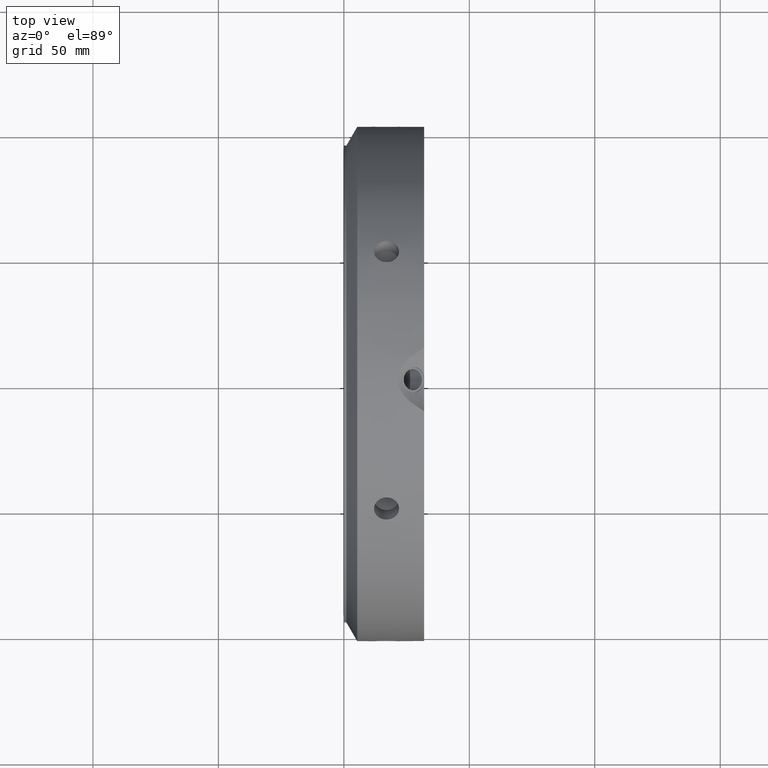
[diagram: clean part render]
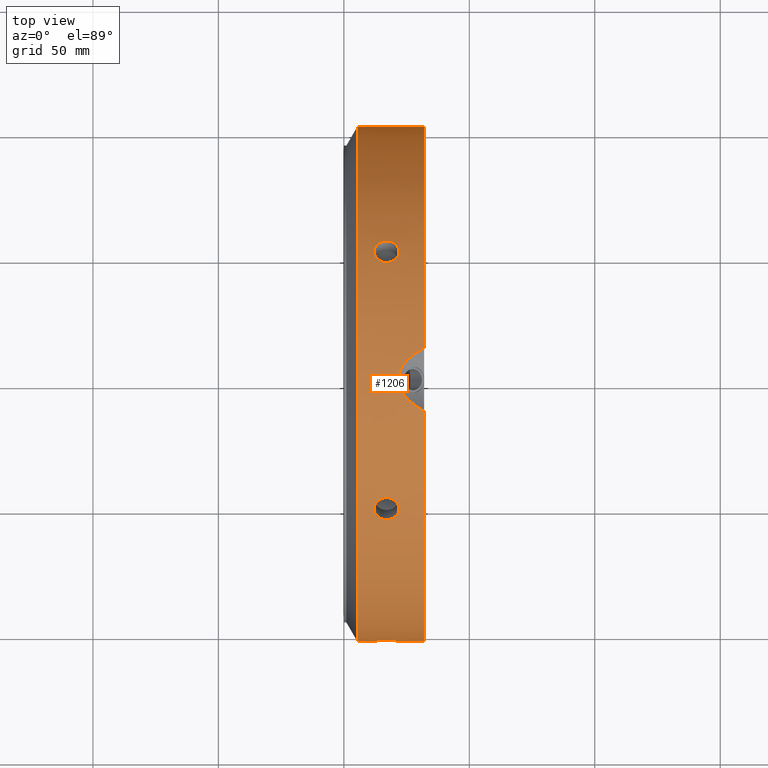
[diagram: same view with one face highlighted and labeled with its STEP entity id]
A machine part, top view. The second image highlights one B-rep face of the part: STEP entity #1206.
In plain terms, the highlighted cylindrical surface (bore or boss wall) has radius 102.5 mm, axis along (1, 0, 0).
Its self-contained STEP definition (entity closure, byte-faithful):
#90=CARTESIAN_POINT('',(11.999999999999977,51.250000000000085,88.767603887904926));
#91=VERTEX_POINT('',#90);
#92=CARTESIAN_POINT('',(21.999999999999975,51.250000000000099,88.767603887904926));
#93=VERTEX_POINT('',#92);
#94=CARTESIAN_POINT('',(11.999999999999977,51.250000000000078,88.767603887904926));
#95=CARTESIAN_POINT('',(11.999999999999977,51.793792921607164,88.453644898231673));
#96=CARTESIAN_POINT('',(12.125509943807328,52.370592083182842,88.113282718285021));
#97=CARTESIAN_POINT('',(12.635809299555829,53.425919702551667,87.477429148746651));
#98=CARTESIAN_POINT('',(13.020593196876021,53.904619909852869,87.182218429070844));
#99=CARTESIAN_POINT('',(13.908339076196159,54.658110761937067,86.711811109278756));
#100=CARTESIAN_POINT('',(14.470510937476194,54.983184160409024,86.505287083411844));
#101=CARTESIAN_POINT('',(15.70237812787928,55.413605861205809,86.230200738064752));
#102=CARTESIAN_POINT('',(16.372081900497648,55.519115092530441,86.161928131526622));
#103=CARTESIAN_POINT('',(17.62791809950231,55.519115092530441,86.161928131526622));
#104=CARTESIAN_POINT('',(18.297621872120676,55.413605861205809,86.230200738064752));
#105=CARTESIAN_POINT('',(19.529489062523766,54.983184160409024,86.505287083411844));
#106=CARTESIAN_POINT('',(20.091660923803794,54.658110761937067,86.711811109278756));
#107=CARTESIAN_POINT('',(20.979406803123936,53.904619909852869,87.182218429070844));
#108=CARTESIAN_POINT('',(21.364190700444126,53.425919702551667,87.477429148746651));
#109=CARTESIAN_POINT('',(21.874490056192627,52.370592083182842,88.113282718285021));
#110=CARTESIAN_POINT('',(21.999999999999975,51.793792921607142,88.453644898231673));
#111=CARTESIAN_POINT('',(21.999999999999975,51.250000000000064,88.767603887904926));
#112=B_SPLINE_CURVE_WITH_KNOTS('',3,(#94,#95,#96,#97,#98,#99,#100,#101,#102,#103,#104,#105,#106,#107,#108,#109,#110,#111),.UNSPECIFIED.,.F.,.U.,(4,2,2,2,2,2,2,2,4),(0.753501647309308,0.941877041113261,1.130252434917214,1.318627864767914,1.507003294618613,1.695378724469313,1.883754154320012,2.072129548123965,2.260504941927918),.UNSPECIFIED.);
#113=EDGE_CURVE('',#91,#93,#112,.T.);
#115=CARTESIAN_POINT('',(21.999999999999975,51.250000000000071,88.767603887904897));
#116=CARTESIAN_POINT('',(21.999999999999975,50.706207078393,89.081562877578165));
#117=CARTESIAN_POINT('',(21.874490056192624,50.12304520328393,89.410904514410973));
#118=CARTESIAN_POINT('',(21.364190700444116,49.044716049292248,90.006918257330554));
#119=CARTESIAN_POINT('',(20.979406803123936,48.549705962932919,90.273879437812354));
#120=CARTESIAN_POINT('',(20.091660923803794,47.765575847824721,90.691217997340416));
#121=CARTESIAN_POINT('',(19.529489062523751,47.424184095696134,90.8694778055782));
#122=CARTESIAN_POINT('',(18.297621872120665,46.970741481992981,91.104690760134787));
#123=CARTESIAN_POINT('',(17.627918099502303,46.858861054686059,91.161928131526622));
#124=CARTESIAN_POINT('',(16.999999999999979,46.858861054686059,91.161928131526622));
#125=CARTESIAN_POINT('',(16.372081900497648,46.858861054686059,91.161928131526622));
#126=CARTESIAN_POINT('',(15.702378127879291,46.970741481992988,91.104690760134787));
#127=CARTESIAN_POINT('',(14.470510937476204,47.424184095696155,90.8694778055782));
#128=CARTESIAN_POINT('',(13.90833907619616,47.765575847824721,90.691217997340416));
#129=CARTESIAN_POINT('',(13.020593196876016,48.549705962932919,90.273879437812354));
#130=CARTESIAN_POINT('',(12.635809299555834,49.044716049292248,90.006918257330554));
#131=CARTESIAN_POINT('',(12.125509943807327,50.12304520328393,89.410904514410973));
#132=CARTESIAN_POINT('',(11.999999999999979,50.706207078393007,89.081562877578165));
#133=CARTESIAN_POINT('',(11.999999999999979,51.250000000000071,88.767603887904897));
#134=B_SPLINE_CURVE_WITH_KNOTS('',3,(#115,#116,#117,#118,#119,#120,#121,#122,#123,#124,#125,#126,#127,#128,#129,#130,#131,#132,#133),.UNSPECIFIED.,.F.,.U.,(4,2,2,2,3,2,2,2,4),(2.260504941927918,2.448880335731873,2.637255729535828,2.825631159386528,3.014006589237226,3.202382019087926,3.390757448938624,3.579132842742579,3.767508236546534),.UNSPECIFIED.);
#135=EDGE_CURVE('',#93,#91,#134,.T.);
#202=CARTESIAN_POINT('',(11.999999999999977,102.5,-6.827872E-014));
#203=VERTEX_POINT('',#202);
#204=CARTESIAN_POINT('',(21.999999999999975,102.5,-6.217249E-014));
#205=VERTEX_POINT('',#204);
#206=CARTESIAN_POINT('',(11.999999999999977,102.5,-7.299716E-014));
#207=CARTESIAN_POINT('',(11.999999999999977,102.5,-0.627917979346587));
#208=CARTESIAN_POINT('',(12.125509943807327,102.49363728646659,-1.297621796126012));
#209=CARTESIAN_POINT('',(12.635809299555829,102.47063575184377,-2.529489108583968));
#210=CARTESIAN_POINT('',(13.020593196876018,102.45432587278565,-3.09166100874159));
#211=CARTESIAN_POINT('',(13.90833907619616,102.42368660976166,-3.979406888061733));
#212=CARTESIAN_POINT('',(14.470510937476195,102.407368256105,-4.364190722166458));
#213=CARTESIAN_POINT('',(15.702378127879278,102.38434734319864,-4.874490022070102));
#214=CARTESIAN_POINT('',(16.372081900497648,102.37797614721636,-5.000000000000071));
#215=CARTESIAN_POINT('',(17.627918099502303,102.37797614721636,-5.000000000000071));
#216=CARTESIAN_POINT('',(18.297621872120665,102.38434734319864,-4.874490022070104));
#217=CARTESIAN_POINT('',(19.529489062523751,102.407368256105,-4.364190722166462));
#218=CARTESIAN_POINT('',(20.09166092380379,102.42368660976166,-3.979406888061735));
#219=CARTESIAN_POINT('',(20.979406803123936,102.45432587278565,-3.091661008741592));
#220=CARTESIAN_POINT('',(21.364190700444119,102.47063575184377,-2.529489108583968));
#221=CARTESIAN_POINT('',(21.874490056192624,102.49363728646659,-1.297621796126014));
#222=CARTESIAN_POINT('',(21.999999999999979,102.5,-0.627917979346588));
#223=CARTESIAN_POINT('',(21.999999999999979,102.5,-7.452372E-014));
#224=B_SPLINE_CURVE_WITH_KNOTS('',3,(#206,#207,#208,#209,#210,#211,#212,#213,#214,#215,#216,#217,#218,#219,#220,#221,#222,#223),.UNSPECIFIED.,.F.,.U.,(4,2,2,2,2,2,2,2,4),(0.753501647309307,0.941877041113261,1.130252434917215,1.318627864767914,1.507003294618613,1.695378724469312,1.883754154320012,2.072129548123966,2.26050494192792),.UNSPECIFIED.);
#225=EDGE_CURVE('',#203,#205,#224,.T.);
#227=CARTESIAN_POINT('',(21.999999999999975,102.5,-7.535639E-014));
#228=CARTESIAN_POINT('',(21.999999999999975,102.5,0.627917979346438));
#229=CARTESIAN_POINT('',(21.874490056192624,102.49363728646659,1.297621796125865));
#230=CARTESIAN_POINT('',(21.364190700444119,102.47063575184377,2.52948910858382));
#231=CARTESIAN_POINT('',(20.979406803123936,102.45432587278565,3.091661008741443));
#232=CARTESIAN_POINT('',(20.091660923803794,102.42368660976166,3.979406888061586));
#233=CARTESIAN_POINT('',(19.529489062523758,102.407368256105,4.364190722166311));
#234=CARTESIAN_POINT('',(18.297621872120672,102.38434734319864,4.874490022069955));
#235=CARTESIAN_POINT('',(17.62791809950231,102.37797614721636,4.999999999999926));
#236=CARTESIAN_POINT('',(16.999999999999979,102.37797614721636,4.999999999999926));
#237=CARTESIAN_POINT('',(16.372081900497648,102.37797614721636,4.999999999999926));
#238=CARTESIAN_POINT('',(15.702378127879284,102.38434734319864,4.874490022069955));
#239=CARTESIAN_POINT('',(14.470510937476197,102.407368256105,4.364190722166311));
#240=CARTESIAN_POINT('',(13.90833907619616,102.42368660976166,3.979406888061587));
#241=CARTESIAN_POINT('',(13.020593196876021,102.45432587278565,3.091661008741444));
#242=CARTESIAN_POINT('',(12.635809299555831,102.47063575184379,2.52948910858382));
#243=CARTESIAN_POINT('',(12.125509943807328,102.49363728646662,1.297621796125863));
#244=CARTESIAN_POINT('',(11.999999999999977,102.49999999999999,0.627917979346441));
#245=CARTESIAN_POINT('',(11.999999999999977,102.49999999999999,-7.230327E-014));
#246=B_SPLINE_CURVE_WITH_KNOTS('',3,(#227,#228,#229,#230,#231,#232,#233,#234,#235,#236,#237,#238,#239,#240,#241,#242,#243,#244,#245),.UNSPECIFIED.,.F.,.U.,(4,2,2,2,3,2,2,2,4),(2.26050494192792,2.448880335731874,2.637255729535828,2.825631159386527,3.014006589237226,3.202382019087926,3.390757448938625,3.579132842742579,3.767508236546533),.UNSPECIFIED.);
#247=EDGE_CURVE('',#205,#203,#246,.T.);
#314=CARTESIAN_POINT('',(11.999999999999977,51.249999999999986,-88.767603887905011));
#315=VERTEX_POINT('',#314);
#316=CARTESIAN_POINT('',(21.999999999999975,51.25,-88.767603887904997));
#317=VERTEX_POINT('',#316);
#318=CARTESIAN_POINT('',(11.999999999999977,51.249999999999972,-88.767603887904983));
#319=CARTESIAN_POINT('',(11.999999999999977,50.7062070783929,-89.081562877578222));
#320=CARTESIAN_POINT('',(12.125509943807325,50.123045203283816,-89.410904514411015));
#321=CARTESIAN_POINT('',(12.635809299555827,49.044716049292141,-90.006918257330597));
#322=CARTESIAN_POINT('',(13.020593196876018,48.549705962932812,-90.273879437812425));
#323=CARTESIAN_POINT('',(13.90833907619616,47.765575847824607,-90.691217997340473));
#324=CARTESIAN_POINT('',(14.470510937476199,47.424184095696027,-90.869477805578242));
#325=CARTESIAN_POINT('',(15.70237812787928,46.97074148199286,-91.104690760134844));
#326=CARTESIAN_POINT('',(16.372081900497648,46.858861054685946,-91.161928131526679));
#327=CARTESIAN_POINT('',(17.62791809950231,46.858861054685946,-91.161928131526679));
#328=CARTESIAN_POINT('',(18.297621872120672,46.97074148199286,-91.104690760134858));
#329=CARTESIAN_POINT('',(19.529489062523755,47.42418409569602,-90.869477805578271));
#330=CARTESIAN_POINT('',(20.091660923803794,47.765575847824607,-90.691217997340473));
#331=CARTESIAN_POINT('',(20.979406803123936,48.549705962932812,-90.273879437812425));
#332=CARTESIAN_POINT('',(21.36419070044413,49.044716049292141,-90.006918257330597));
#333=CARTESIAN_POINT('',(21.874490056192634,50.123045203283816,-89.410904514411015));
#334=CARTESIAN_POINT('',(21.999999999999975,50.7062070783929,-89.081562877578222));
#335=CARTESIAN_POINT('',(21.999999999999975,51.249999999999972,-88.767603887904983));
#336=B_SPLINE_CURVE_WITH_KNOTS('',3,(#318,#319,#320,#321,#322,#323,#324,#325,#326,#327,#328,#329,#330,#331,#332,#333,#334,#335),.UNSPECIFIED.,.F.,.U.,(4,2,2,2,2,2,2,2,4),(0.753501647309307,0.941877041113261,1.130252434917215,1.318627864767915,1.507003294618614,1.695378724469313,1.883754154320013,2.072129548123967,2.260504941927921),.UNSPECIFIED.);
#337=EDGE_CURVE('',#315,#317,#336,.T.);
#339=CARTESIAN_POINT('',(21.999999999999975,51.249999999999964,-88.767603887904983));
#340=CARTESIAN_POINT('',(21.999999999999975,51.793792921607036,-88.453644898231715));
#341=CARTESIAN_POINT('',(21.874490056192627,52.370592083182729,-88.113282718285092));
#342=CARTESIAN_POINT('',(21.364190700444126,53.425919702551568,-87.477429148746722));
#343=CARTESIAN_POINT('',(20.979406803123936,53.904619909852762,-87.182218429070915));
#344=CARTESIAN_POINT('',(20.091660923803794,54.65811076193696,-86.711811109278827));
#345=CARTESIAN_POINT('',(19.529489062523755,54.983184160408918,-86.505287083411901));
#346=CARTESIAN_POINT('',(18.297621872120665,55.413605861205696,-86.230200738064838));
#347=CARTESIAN_POINT('',(17.62791809950231,55.519115092530349,-86.161928131526679));
#348=CARTESIAN_POINT('',(16.999999999999979,55.519115092530349,-86.161928131526679));
#349=CARTESIAN_POINT('',(16.372081900497648,55.519115092530349,-86.161928131526679));
#350=CARTESIAN_POINT('',(15.702378127879289,55.413605861205696,-86.230200738064838));
#351=CARTESIAN_POINT('',(14.470510937476199,54.983184160408918,-86.505287083411901));
#352=CARTESIAN_POINT('',(13.908339076196166,54.65811076193696,-86.711811109278827));
#353=CARTESIAN_POINT('',(13.020593196876021,53.904619909852762,-87.182218429070915));
#354=CARTESIAN_POINT('',(12.635809299555842,53.425919702551582,-87.477429148746722));
#355=CARTESIAN_POINT('',(12.12550994380733,52.37059208318275,-88.113282718285092));
#356=CARTESIAN_POINT('',(11.999999999999975,51.793792921607036,-88.453644898231715));
#357=CARTESIAN_POINT('',(11.999999999999975,51.249999999999964,-88.767603887904983));
#358=B_SPLINE_CURVE_WITH_KNOTS('',3,(#339,#340,#341,#342,#343,#344,#345,#346,#347,#348,#349,#350,#351,#352,#353,#354,#355,#356,#357),.UNSPECIFIED.,.F.,.U.,(4,2,2,2,3,2,2,2,4),(2.260504941927921,2.448880335731875,2.637255729535829,2.825631159386528,3.014006589237228,3.202382019087927,3.390757448938627,3.579132842742581,3.767508236546535),.UNSPECIFIED.);
#359=EDGE_CURVE('',#317,#315,#358,.T.);
#426=CARTESIAN_POINT('',(11.999999999999977,-51.250000000000028,-88.76760388790494));
#427=VERTEX_POINT('',#426);
#428=CARTESIAN_POINT('',(21.999999999999975,-51.250000000000036,-88.76760388790494));
#429=VERTEX_POINT('',#428);
#430=CARTESIAN_POINT('',(11.999999999999977,-51.250000000000036,-88.76760388790494));
#431=CARTESIAN_POINT('',(11.999999999999977,-51.793792921607107,-88.453644898231687));
#432=CARTESIAN_POINT('',(12.125509943807325,-52.3705920831828,-88.113282718285063));
#433=CARTESIAN_POINT('',(12.635809299555831,-53.425919702551639,-87.477429148746694));
#434=CARTESIAN_POINT('',(13.020593196876018,-53.904619909852833,-87.182218429070844));
#435=CARTESIAN_POINT('',(13.908339076196164,-54.658110761937031,-86.711811109278756));
#436=CARTESIAN_POINT('',(14.470510937476204,-54.983184160408996,-86.505287083411829));
#437=CARTESIAN_POINT('',(15.702378127879285,-55.41360586120576,-86.230200738064781));
#438=CARTESIAN_POINT('',(16.372081900497648,-55.519115092530413,-86.161928131526651));
#439=CARTESIAN_POINT('',(17.62791809950231,-55.519115092530413,-86.161928131526651));
#440=CARTESIAN_POINT('',(18.297621872120668,-55.413605861205767,-86.230200738064781));
#441=CARTESIAN_POINT('',(19.529489062523744,-54.98318416040901,-86.505287083411829));
#442=CARTESIAN_POINT('',(20.091660923803786,-54.658110761937031,-86.711811109278756));
#443=CARTESIAN_POINT('',(20.979406803123936,-53.904619909852833,-87.182218429070844));
#444=CARTESIAN_POINT('',(21.364190700444119,-53.425919702551639,-87.477429148746694));
#445=CARTESIAN_POINT('',(21.874490056192634,-52.3705920831828,-88.113282718285063));
#446=CARTESIAN_POINT('',(21.999999999999975,-51.793792921607107,-88.453644898231687));
#447=CARTESIAN_POINT('',(21.999999999999975,-51.250000000000036,-88.76760388790494));
#448=B_SPLINE_CURVE_WITH_KNOTS('',3,(#430,#431,#432,#433,#434,#435,#436,#437,#438,#439,#440,#441,#442,#443,#444,#445,#446,#447),.UNSPECIFIED.,.F.,.U.,(4,2,2,2,2,2,2,2,4),(0.753501647309307,0.941877041113261,1.130252434917216,1.318627864767915,1.507003294618614,1.695378724469313,1.883754154320012,2.072129548123967,2.260504941927921),.UNSPECIFIED.);
#449=EDGE_CURVE('',#427,#429,#448,.T.);
#451=CARTESIAN_POINT('',(21.999999999999979,-51.250000000000043,-88.76760388790494));
#452=CARTESIAN_POINT('',(21.999999999999979,-50.706207078392971,-89.081562877578193));
#453=CARTESIAN_POINT('',(21.874490056192638,-50.123045203283894,-89.410904514410987));
#454=CARTESIAN_POINT('',(21.36419070044413,-49.044716049292212,-90.006918257330568));
#455=CARTESIAN_POINT('',(20.979406803123936,-48.549705962932883,-90.273879437812383));
#456=CARTESIAN_POINT('',(20.091660923803794,-47.765575847824678,-90.691217997340431));
#457=CARTESIAN_POINT('',(19.529489062523758,-47.424184095696106,-90.869477805578228));
#458=CARTESIAN_POINT('',(18.297621872120672,-46.970741481992931,-91.104690760134815));
#459=CARTESIAN_POINT('',(17.62791809950231,-46.858861054686017,-91.161928131526651));
#460=CARTESIAN_POINT('',(16.999999999999979,-46.858861054686017,-91.161928131526651));
#461=CARTESIAN_POINT('',(16.372081900497648,-46.858861054686017,-91.161928131526651));
#462=CARTESIAN_POINT('',(15.702378127879282,-46.970741481992931,-91.104690760134815));
#463=CARTESIAN_POINT('',(14.470510937476197,-47.424184095696106,-90.869477805578228));
#464=CARTESIAN_POINT('',(13.90833907619616,-47.765575847824678,-90.691217997340431));
#465=CARTESIAN_POINT('',(13.020593196876021,-48.549705962932883,-90.273879437812383));
#466=CARTESIAN_POINT('',(12.635809299555836,-49.044716049292212,-90.006918257330568));
#467=CARTESIAN_POINT('',(12.12550994380733,-50.123045203283887,-89.410904514410987));
#468=CARTESIAN_POINT('',(11.999999999999975,-50.706207078392964,-89.081562877578193));
#469=CARTESIAN_POINT('',(11.999999999999975,-51.250000000000036,-88.76760388790494));
#470=B_SPLINE_CURVE_WITH_KNOTS('',3,(#451,#452,#453,#454,#455,#456,#457,#458,#459,#460,#461,#462,#463,#464,#465,#466,#467,#468,#469),.UNSPECIFIED.,.F.,.U.,(4,2,2,2,3,2,2,2,4),(2.260504941927921,2.448880335731875,2.63725572953583,2.825631159386529,3.014006589237228,3.202382019087927,3.390757448938627,3.579132842742581,3.767508236546535),.UNSPECIFIED.);
#471=EDGE_CURVE('',#429,#427,#470,.T.);
#538=CARTESIAN_POINT('',(11.999999999999977,-102.5,2.844947E-014));
#539=VERTEX_POINT('',#538);
#540=CARTESIAN_POINT('',(21.999999999999975,-102.5,2.664535E-014));
#541=VERTEX_POINT('',#540);
#542=CARTESIAN_POINT('',(11.999999999999977,-102.5,2.761680E-014));
#543=CARTESIAN_POINT('',(11.999999999999977,-102.5,0.627917979346542));
#544=CARTESIAN_POINT('',(12.125509943807328,-102.49363728646659,1.297621796125966));
#545=CARTESIAN_POINT('',(12.635809299555831,-102.47063575184377,2.529489108583922));
#546=CARTESIAN_POINT('',(13.020593196876021,-102.45432587278565,3.091661008741545));
#547=CARTESIAN_POINT('',(13.90833907619616,-102.42368660976166,3.979406888061688));
#548=CARTESIAN_POINT('',(14.470510937476197,-102.407368256105,4.364190722166414));
#549=CARTESIAN_POINT('',(15.702378127879284,-102.38434734319864,4.874490022070058));
#550=CARTESIAN_POINT('',(16.372081900497648,-102.37797614721636,5.000000000000028));
#551=CARTESIAN_POINT('',(17.627918099502303,-102.37797614721636,5.000000000000027));
#552=CARTESIAN_POINT('',(18.297621872120665,-102.38434734319864,4.874490022070058));
#553=CARTESIAN_POINT('',(19.529489062523751,-102.407368256105,4.364190722166415));
#554=CARTESIAN_POINT('',(20.09166092380379,-102.42368660976166,3.979406888061688));
#555=CARTESIAN_POINT('',(20.979406803123936,-102.45432587278565,3.091661008741546));
#556=CARTESIAN_POINT('',(21.364190700444119,-102.47063575184377,2.529489108583922));
#557=CARTESIAN_POINT('',(21.874490056192624,-102.49363728646659,1.297621796125968));
#558=CARTESIAN_POINT('',(21.999999999999979,-102.5,0.627917979346543));
#559=CARTESIAN_POINT('',(21.999999999999979,-102.5,2.928213E-014));
#560=B_SPLINE_CURVE_WITH_KNOTS('',3,(#542,#543,#544,#545,#546,#547,#548,#549,#550,#551,#552,#553,#554,#555,#556,#557,#558,#559),.UNSPECIFIED.,.F.,.U.,(4,2,2,2,2,2,2,2,4),(0.753501647309307,0.941877041113261,1.130252434917215,1.318627864767915,1.507003294618614,1.695378724469313,1.883754154320012,2.072129548123966,2.26050494192792),.UNSPECIFIED.);
#561=EDGE_CURVE('',#539,#541,#560,.T.);
#563=CARTESIAN_POINT('',(21.999999999999975,-102.49999999999999,2.914335E-014));
#564=CARTESIAN_POINT('',(21.999999999999975,-102.49999999999999,-0.627917979346484));
#565=CARTESIAN_POINT('',(21.874490056192634,-102.49363728646662,-1.297621796125907));
#566=CARTESIAN_POINT('',(21.36419070044413,-102.47063575184379,-2.529489108583865));
#567=CARTESIAN_POINT('',(20.979406803123936,-102.45432587278565,-3.091661008741489));
#568=CARTESIAN_POINT('',(20.091660923803794,-102.42368660976166,-3.979406888061632));
#569=CARTESIAN_POINT('',(19.529489062523758,-102.407368256105,-4.364190722166357));
#570=CARTESIAN_POINT('',(18.297621872120672,-102.38434734319864,-4.874490022070001));
#571=CARTESIAN_POINT('',(17.62791809950231,-102.37797614721636,-4.999999999999973));
#572=CARTESIAN_POINT('',(16.999999999999979,-102.37797614721636,-4.999999999999973));
#573=CARTESIAN_POINT('',(16.372081900497648,-102.37797614721636,-4.999999999999973));
#574=CARTESIAN_POINT('',(15.702378127879284,-102.38434734319864,-4.874490022070003));
#575=CARTESIAN_POINT('',(14.470510937476197,-102.407368256105,-4.364190722166358));
#576=CARTESIAN_POINT('',(13.90833907619616,-102.42368660976166,-3.979406888061633));
#577=CARTESIAN_POINT('',(13.020593196876021,-102.45432587278565,-3.09166100874149));
#578=CARTESIAN_POINT('',(12.635809299555831,-102.47063575184379,-2.529489108583866));
#579=CARTESIAN_POINT('',(12.125509943807328,-102.49363728646662,-1.29762179612591));
#580=CARTESIAN_POINT('',(11.999999999999977,-102.49999999999999,-0.627917979346487));
#581=CARTESIAN_POINT('',(11.999999999999977,-102.49999999999999,2.664535E-014));
#582=B_SPLINE_CURVE_WITH_KNOTS('',3,(#563,#564,#565,#566,#567,#568,#569,#570,#571,#572,#573,#574,#575,#576,#577,#578,#579,#580,#581),.UNSPECIFIED.,.F.,.U.,(4,2,2,2,3,2,2,2,4),(2.26050494192792,2.448880335731874,2.637255729535829,2.825631159386528,3.014006589237227,3.202382019087926,3.390757448938626,3.57913284274258,3.767508236546534),.UNSPECIFIED.);
#583=EDGE_CURVE('',#541,#539,#582,.T.);
#687=CARTESIAN_POINT('',(11.999999999999977,-51.249999999999993,88.767603887904983));
#688=VERTEX_POINT('',#687);
#689=CARTESIAN_POINT('',(21.999999999999975,-51.249999999999993,88.767603887904983));
#690=VERTEX_POINT('',#689);
#691=CARTESIAN_POINT('',(11.999999999999977,-51.249999999999972,88.767603887904983));
#692=CARTESIAN_POINT('',(11.999999999999977,-50.7062070783929,89.081562877578222));
#693=CARTESIAN_POINT('',(12.125509943807328,-50.123045203283837,89.410904514411015));
#694=CARTESIAN_POINT('',(12.635809299555827,-49.04471604929217,90.006918257330597));
#695=CARTESIAN_POINT('',(13.020593196876021,-48.549705962932833,90.273879437812383));
#696=CARTESIAN_POINT('',(13.90833907619616,-47.765575847824628,90.691217997340459));
#697=CARTESIAN_POINT('',(14.470510937476195,-47.424184095696063,90.869477805578271));
#698=CARTESIAN_POINT('',(15.702378127879282,-46.970741481992889,91.104690760134858));
#699=CARTESIAN_POINT('',(16.372081900497648,-46.858861054685974,91.161928131526679));
#700=CARTESIAN_POINT('',(17.62791809950231,-46.858861054685974,91.161928131526679));
#701=CARTESIAN_POINT('',(18.297621872120672,-46.970741481992903,91.104690760134858));
#702=CARTESIAN_POINT('',(19.529489062523758,-47.424184095696063,90.869477805578271));
#703=CARTESIAN_POINT('',(20.091660923803794,-47.765575847824628,90.691217997340459));
#704=CARTESIAN_POINT('',(20.979406803123936,-48.549705962932833,90.273879437812383));
#705=CARTESIAN_POINT('',(21.364190700444126,-49.04471604929217,90.006918257330597));
#706=CARTESIAN_POINT('',(21.874490056192627,-50.123045203283837,89.410904514411015));
#707=CARTESIAN_POINT('',(21.999999999999975,-50.7062070783929,89.081562877578222));
#708=CARTESIAN_POINT('',(21.999999999999975,-51.249999999999972,88.767603887904983));
#709=B_SPLINE_CURVE_WITH_KNOTS('',3,(#691,#692,#693,#694,#695,#696,#697,#698,#699,#700,#701,#702,#703,#704,#705,#706,#707,#708),.UNSPECIFIED.,.F.,.U.,(4,2,2,2,2,2,2,2,4),(0.753501647309308,0.941877041113261,1.130252434917215,1.318627864767914,1.507003294618614,1.695378724469313,1.883754154320012,2.072129548123966,2.260504941927919),.UNSPECIFIED.);
#710=EDGE_CURVE('',#688,#690,#709,.T.);
#712=CARTESIAN_POINT('',(21.999999999999975,-51.249999999999972,88.767603887904954));
#713=CARTESIAN_POINT('',(21.999999999999975,-51.793792921607043,88.453644898231701));
#714=CARTESIAN_POINT('',(21.874490056192627,-52.37059208318275,88.113282718285092));
#715=CARTESIAN_POINT('',(21.364190700444119,-53.425919702551582,87.477429148746722));
#716=CARTESIAN_POINT('',(20.979406803123936,-53.904619909852784,87.182218429070872));
#717=CARTESIAN_POINT('',(20.091660923803794,-54.658110761936982,86.711811109278813));
#718=CARTESIAN_POINT('',(19.529489062523758,-54.983184160408925,86.505287083411872));
#719=CARTESIAN_POINT('',(18.297621872120672,-55.41360586120571,86.230200738064795));
#720=CARTESIAN_POINT('',(17.62791809950231,-55.51911509253037,86.161928131526679));
#721=CARTESIAN_POINT('',(16.999999999999979,-55.51911509253037,86.161928131526679));
#722=CARTESIAN_POINT('',(16.372081900497648,-55.51911509253037,86.161928131526679));
#723=CARTESIAN_POINT('',(15.702378127879285,-55.413605861205717,86.230200738064809));
#724=CARTESIAN_POINT('',(14.470510937476202,-54.983184160408946,86.505287083411858));
#725=CARTESIAN_POINT('',(13.908339076196164,-54.658110761936982,86.711811109278784));
#726=CARTESIAN_POINT('',(13.020593196876021,-53.904619909852784,87.182218429070872));
#727=CARTESIAN_POINT('',(12.635809299555836,-53.425919702551603,87.477429148746722));
#728=CARTESIAN_POINT('',(12.125509943807327,-52.370592083182771,88.113282718285092));
#729=CARTESIAN_POINT('',(11.999999999999975,-51.793792921607043,88.453644898231715));
#730=CARTESIAN_POINT('',(11.999999999999975,-51.249999999999972,88.767603887904983));
#731=B_SPLINE_CURVE_WITH_KNOTS('',3,(#712,#713,#714,#715,#716,#717,#718,#719,#720,#721,#722,#723,#724,#725,#726,#727,#728,#729,#730),.UNSPECIFIED.,.F.,.U.,(4,2,2,2,3,2,2,2,4),(2.260504941927919,2.448880335731874,2.637255729535828,2.825631159386528,3.014006589237227,3.202382019087926,3.390757448938626,3.57913284274258,3.767508236546535),.UNSPECIFIED.);
#732=EDGE_CURVE('',#690,#688,#731,.T.);
#747=CARTESIAN_POINT('',(31.999999999999979,94.41770309262445,-39.894201868354457));
#748=VERTEX_POINT('',#747);
#796=CARTESIAN_POINT('',(31.999999999999986,81.758243828011729,-61.821028511012216));
#797=VERTEX_POINT('',#796);
#805=CARTESIAN_POINT('',(31.999999999999961,94.417703092624464,-39.894201868354415));
#806=CARTESIAN_POINT('',(30.787406320978473,94.160733705051868,-40.50237193326226));
#807=CARTESIAN_POINT('',(29.626501166501484,93.87781733949366,-41.155870422830425));
#808=CARTESIAN_POINT('',(26.791828704654492,93.056307086449621,-42.991895340156972));
#809=CARTESIAN_POINT('',(25.02929864073409,92.404433215690943,-44.394576049478744));
#810=CARTESIAN_POINT('',(23.081582856291934,91.198908683228055,-46.795416435565599));
#811=CARTESIAN_POINT('',(22.546829112044943,90.758854090961762,-47.64539555705727));
#812=CARTESIAN_POINT('',(21.809662536504753,89.810404972196778,-49.4099632923228));
#813=CARTESIAN_POINT('',(21.607695154586743,89.301853024823913,-50.324653350956581));
#814=CARTESIAN_POINT('',(21.607695154586743,88.233354750985967,-52.175346649043526));
#815=CARTESIAN_POINT('',(21.809662536504753,87.695485897306469,-53.073110583929378));
#816=CARTESIAN_POINT('',(22.546829112044946,86.641549971250654,-54.77677548260958));
#817=CARTESIAN_POINT('',(23.081582856291931,86.125473755485615,-55.582863499310008));
#818=CARTESIAN_POINT('',(25.029298640734087,84.64904725693421,-57.82729856235165));
#819=CARTESIAN_POINT('',(26.791828704654463,83.760227064642535,-59.093178249152857));
#820=CARTESIAN_POINT('',(29.626501166501463,82.580937970778507,-60.72263945642166));
#821=CARTESIAN_POINT('',(30.787406320978469,82.156449860256828,-61.294401460925485));
#822=CARTESIAN_POINT('',(31.999999999999975,81.7582438280117,-61.821028511012216));
#823=B_SPLINE_CURVE_WITH_KNOTS('',3,(#805,#806,#807,#808,#809,#810,#811,#812,#813,#814,#815,#816,#817,#818,#819,#820,#821,#822),.UNSPECIFIED.,.F.,.U.,(4,2,2,2,2,2,2,2,4),(2.435774495287854,2.837417642102155,3.478516606404918,3.799066088556299,4.119615570707681,4.440165052859062,4.760714535010441,5.401813499313203,5.803456646127509),.UNSPECIFIED.);
#824=EDGE_CURVE('',#748,#797,#823,.T.);
#933=CARTESIAN_POINT('',(31.999999999999979,-81.758243828011729,-61.821028511012202));
#934=VERTEX_POINT('',#933);
#982=CARTESIAN_POINT('',(31.999999999999975,-94.417703092624507,-39.894201868354308));
#983=VERTEX_POINT('',#982);
#991=CARTESIAN_POINT('',(31.999999999999993,-81.758243828011729,-61.821028511012187));
#992=CARTESIAN_POINT('',(30.721129397206806,-82.178214670102989,-61.265617523273008));
#993=CARTESIAN_POINT('',(29.49977983311296,-82.627362243197211,-60.660103175792429));
#994=CARTESIAN_POINT('',(26.654013327690201,-83.828253223240935,-58.996451191363377));
#995=CARTESIAN_POINT('',(24.934431754325743,-84.70768946229478,-57.740738160684955));
#996=CARTESIAN_POINT('',(23.038055393576975,-86.165589401197153,-55.520492689770165));
#997=CARTESIAN_POINT('',(22.518208366383124,-86.674793213315141,-54.723907339806075));
#998=CARTESIAN_POINT('',(21.802781440708717,-87.71338753060283,-53.043260280144857));
#999=CARTESIAN_POINT('',(21.607695154586747,-88.242793589611651,-52.158998100979403));
#1000=CARTESIAN_POINT('',(21.607695154586747,-89.2924141861983,-50.341001899020561));
#1001=CARTESIAN_POINT('',(21.802781440708724,-89.793504667456943,-49.440391713418784));
#1002=CARTESIAN_POINT('',(22.518208366383142,-90.729690557275347,-47.700619120590879));
#1003=CARTESIAN_POINT('',(23.038055393576968,-91.164951800567806,-46.861343008610774));
#1004=CARTESIAN_POINT('',(24.934431754325736,-92.358790811566195,-44.48864188988815));
#1005=CARTESIAN_POINT('',(26.654013327690194,-93.006552076469887,-43.09917125051966));
#1006=CARTESIAN_POINT('',(29.499779833112953,-93.84687146801997,-41.227343162411671));
#1007=CARTESIAN_POINT('',(30.721129397206806,-94.146688488746989,-40.535612780323689));
#1008=CARTESIAN_POINT('',(31.999999999999986,-94.417703092624492,-39.89420186835433));
#1009=B_SPLINE_CURVE_WITH_KNOTS('',3,(#991,#992,#993,#994,#995,#996,#997,#998,#999,#1000,#1001,#1002,#1003,#1004,#1005,#1006,#1007,#1008),.UNSPECIFIED.,.F.,.U.,(4,2,2,2,2,2,2,2,4),(2.363620878841583,2.78634259057208,3.416114948524073,3.731001127500068,4.045887306476065,4.360773485452061,4.675659664428057,5.30543202238005,5.728153734110544),.UNSPECIFIED.);
#1010=EDGE_CURVE('',#934,#983,#1009,.T.);
#1112=CARTESIAN_POINT('',(18.665063509461067,0.0,0.0));
#1113=DIRECTION('',(1.0,0.0,0.0));
#1114=DIRECTION('',(0.0,1.0,0.0));
#1115=AXIS2_PLACEMENT_3D('',#1112,#1113,#1114);
#1116=CYLINDRICAL_SURFACE('',#1115,102.5);
#1117=CARTESIAN_POINT('',(5.330127018922158,102.5,0.0));
#1118=VERTEX_POINT('',#1117);
#1119=CARTESIAN_POINT('',(5.330127018922158,0.0,0.0));
#1120=DIRECTION('',(1.0,0.0,0.0));
#1121=DIRECTION('',(0.0,1.0,0.0));
#1122=AXIS2_PLACEMENT_3D('',#1119,#1120,#1121);
#1123=CIRCLE('',#1122,102.5);
#1124=EDGE_CURVE('',#1118,#1118,#1123,.T.);
#1125=ORIENTED_EDGE('',*,*,#1124,.T.);
#1126=EDGE_LOOP('',(#1125));
#1127=FACE_OUTER_BOUND('',#1126,.T.);
#1128=ORIENTED_EDGE('',*,*,#113,.T.);
#1129=ORIENTED_EDGE('',*,*,#135,.T.);
#1130=EDGE_LOOP('',(#1128,#1129));
#1131=FACE_BOUND('',#1130,.T.);
#1132=ORIENTED_EDGE('',*,*,#225,.T.);
#1133=ORIENTED_EDGE('',*,*,#247,.T.);
#1134=EDGE_LOOP('',(#1132,#1133));
#1135=FACE_BOUND('',#1134,.T.);
#1136=ORIENTED_EDGE('',*,*,#337,.T.);
#1137=ORIENTED_EDGE('',*,*,#359,.T.);
#1138=EDGE_LOOP('',(#1136,#1137));
#1139=FACE_BOUND('',#1138,.T.);
#1140=ORIENTED_EDGE('',*,*,#449,.T.);
#1141=ORIENTED_EDGE('',*,*,#471,.T.);
#1142=EDGE_LOOP('',(#1140,#1141));
#1143=FACE_BOUND('',#1142,.T.);
#1144=ORIENTED_EDGE('',*,*,#561,.T.);
#1145=ORIENTED_EDGE('',*,*,#583,.T.);
#1146=EDGE_LOOP('',(#1144,#1145));
#1147=FACE_BOUND('',#1146,.T.);
#1148=ORIENTED_EDGE('',*,*,#710,.T.);
#1149=ORIENTED_EDGE('',*,*,#732,.T.);
#1150=EDGE_LOOP('',(#1148,#1149));
#1151=FACE_BOUND('',#1150,.T.);
#1152=ORIENTED_EDGE('',*,*,#824,.T.);
#1153=CARTESIAN_POINT('',(31.999999999999979,0.0,0.0));
#1154=DIRECTION('',(1.0,0.0,0.0));
#1155=DIRECTION('',(0.0,1.0,0.0));
#1156=AXIS2_PLACEMENT_3D('',#1153,#1154,#1155);
#1157=CIRCLE('',#1156,102.5);
#1158=EDGE_CURVE('',#934,#797,#1157,.T.);
#1159=ORIENTED_EDGE('',*,*,#1158,.F.);
#1160=ORIENTED_EDGE('',*,*,#1010,.T.);
#1161=CARTESIAN_POINT('',(31.999999999999975,-12.659459264612767,101.71523037936652));
#1162=VERTEX_POINT('',#1161);
#1163=CARTESIAN_POINT('',(31.999999999999979,0.0,0.0));
#1164=DIRECTION('',(1.0,0.0,0.0));
#1165=DIRECTION('',(0.0,1.0,0.0));
#1166=AXIS2_PLACEMENT_3D('',#1163,#1164,#1165);
#1167=CIRCLE('',#1166,102.5);
#1168=EDGE_CURVE('',#1162,#983,#1167,.T.);
#1169=ORIENTED_EDGE('',*,*,#1168,.F.);
#1170=CARTESIAN_POINT('',(31.999999999999975,12.659459264612767,101.71523037936652));
#1171=VERTEX_POINT('',#1170);
#1172=CARTESIAN_POINT('',(31.999999999999975,-12.65945926461276,101.71523037936653));
#1173=CARTESIAN_POINT('',(31.52809044820691,-12.404482231447362,101.74696477501928));
#1174=CARTESIAN_POINT('',(31.063688143439467,-12.141301640891783,101.77874823297157));
#1175=CARTESIAN_POINT('',(29.032776710480345,-10.930049279422377,101.91996307405967));
#1176=CARTESIAN_POINT('',(27.563017694820129,-9.890986606439077,102.02831197888223));
#1177=CARTESIAN_POINT('',(25.041933038708663,-7.636708356479121,102.22100763583586));
#1178=CARTESIAN_POINT('',(23.835601174892314,-6.299871706609591,102.31718290783191));
#1179=CARTESIAN_POINT('',(22.542469725604946,-4.055173280392123,102.42249104771201));
#1180=CARTESIAN_POINT('',(22.195831020250992,-3.266495141982915,102.45112949461863));
#1181=CARTESIAN_POINT('',(21.728184475704765,-1.649647334153335,102.48991457209421));
#1182=CARTESIAN_POINT('',(21.607695154586743,-0.821326269497902,102.5));
#1183=CARTESIAN_POINT('',(21.607695154586743,0.821326269497902,102.5));
#1184=CARTESIAN_POINT('',(21.728184475704758,1.649647334153335,102.48991457209421));
#1185=CARTESIAN_POINT('',(22.195831020250981,3.266495141982916,102.45112949461863));
#1186=CARTESIAN_POINT('',(22.542469725604946,4.055173280392123,102.42249104771201));
#1187=CARTESIAN_POINT('',(23.835601174892314,6.299871706609592,102.31718290783191));
#1188=CARTESIAN_POINT('',(25.041933038708663,7.636708356479121,102.22100763583586));
#1189=CARTESIAN_POINT('',(27.563017694820129,9.890986606439077,102.02831197888223));
#1190=CARTESIAN_POINT('',(29.032776710480348,10.930049279422374,101.91996307405967));
#1191=CARTESIAN_POINT('',(31.063688143439471,12.141301640891779,101.77874823297154));
#1192=CARTESIAN_POINT('',(31.52809044820691,12.40448223144737,101.74696477501928));
#1193=CARTESIAN_POINT('',(31.999999999999975,12.659459264612767,101.71523037936653));
#1194=B_SPLINE_CURVE_WITH_KNOTS('',3,(#1172,#1173,#1174,#1175,#1176,#1177,#1178,#1179,#1180,#1181,#1182,#1183,#1184,#1185,#1186,#1187,#1188,#1189,#1190,#1191,#1192,#1193),.UNSPECIFIED.,.F.,.U.,(4,2,2,2,2,2,2,2,2,2,4),(1.418978605248976,1.570311389594818,2.093748519459758,2.5865442811585,2.83294216200787,3.079340042857241,3.325737923706612,3.572135804555983,4.064931566254725,4.588368696119664,4.739701480465507),.UNSPECIFIED.);
#1195=EDGE_CURVE('',#1162,#1171,#1194,.T.);
#1196=ORIENTED_EDGE('',*,*,#1195,.T.);
#1197=CARTESIAN_POINT('',(31.999999999999979,0.0,0.0));
#1198=DIRECTION('',(1.0,0.0,0.0));
#1199=DIRECTION('',(0.0,1.0,0.0));
#1200=AXIS2_PLACEMENT_3D('',#1197,#1198,#1199);
#1201=CIRCLE('',#1200,102.5);
#1202=EDGE_CURVE('',#748,#1171,#1201,.T.);
#1203=ORIENTED_EDGE('',*,*,#1202,.F.);
#1204=EDGE_LOOP('',(#1152,#1159,#1160,#1169,#1196,#1203));
#1205=FACE_BOUND('',#1204,.T.);
#1206=ADVANCED_FACE('',(#1127,#1131,#1135,#1139,#1143,#1147,#1151,#1205),#1116,.T.);